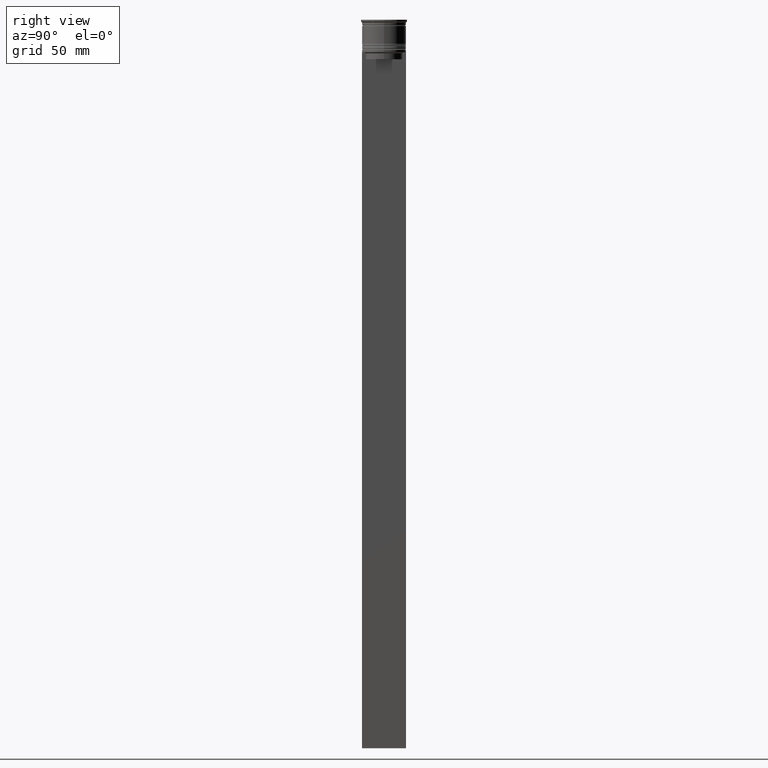
[diagram: clean part render]
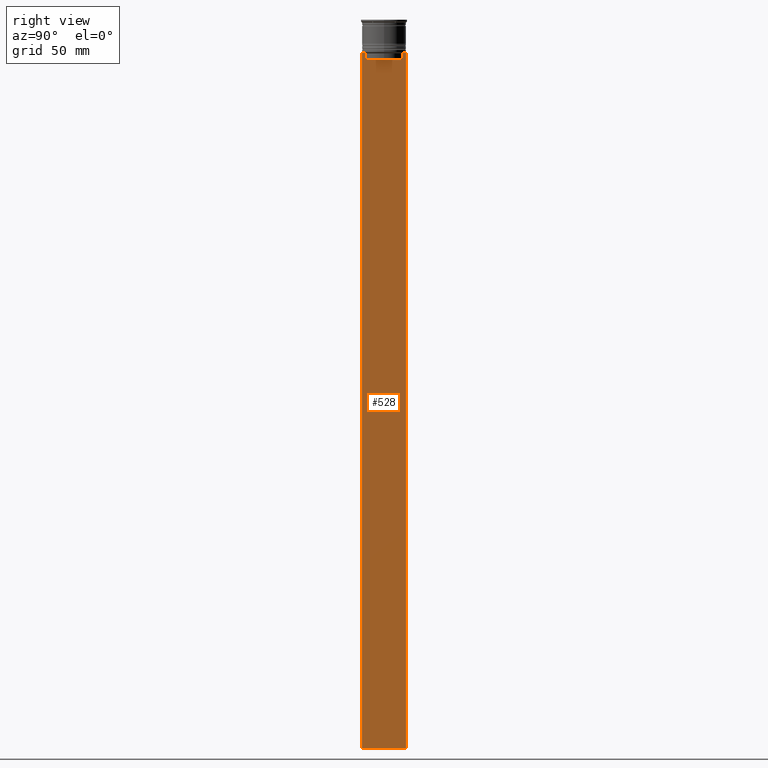
[diagram: same view with one face highlighted and labeled with its STEP entity id]
A machine part, right view. The second image highlights one B-rep face of the part: STEP entity #528.
In plain terms, the highlighted planar face has unit normal (-1, 0, 0).
Its self-contained STEP definition (entity closure, byte-faithful):
#8 = EDGE_CURVE ( 'NONE', #804, #271, #1338, .T. ) ;
#52 = B_SPLINE_CURVE_WITH_KNOTS ( 'NONE', 3,
 ( #320, #1964, #1081, #1904 ),
 .UNSPECIFIED., .F., .F.,
 ( 4, 4 ),
 ( 0.03673372442973153046, 0.03744389749832059688 ),
 .UNSPECIFIED. ) ;
#72 = LINE ( 'NONE', #2338, #1705 ) ;
#82 = CARTESIAN_POINT ( 'NONE',  ( 0.5000000000000000000, 7.884161337770803080, -17.00000000000000000 ) ) ;
#88 = CARTESIAN_POINT ( 'NONE',  ( 0.5000000000000000000, 8.218133718559618828, -14.16667606394327983 ) ) ;
#169 = VERTEX_POINT ( 'NONE', #1041 ) ;
#239 = VECTOR ( 'NONE', #1802, 1000.000000000000000 ) ;
#242 = VECTOR ( 'NONE', #1711, 1000.000000000000000 ) ;
#271 = VERTEX_POINT ( 'NONE', #496 ) ;
#295 = VERTEX_POINT ( 'NONE', #1727 ) ;
#320 = CARTESIAN_POINT ( 'NONE',  ( 0.5000000000000000000, -7.884161337770803080, -14.50000000000000000 ) ) ;
#337 = LINE ( 'NONE', #744, #1183 ) ;
#341 = VECTOR ( 'NONE', #995, 1000.000000000000000 ) ;
#368 = EDGE_CURVE ( 'NONE', #1354, #2404, #439, .T. ) ;
#435 = EDGE_CURVE ( 'NONE', #1732, #1236, #1343, .T. ) ;
#439 = LINE ( 'NONE', #1533, #242 ) ;
#496 = CARTESIAN_POINT ( 'NONE',  ( 0.5000000000000000000, 8.385105843100605583, -14.00000000000000178 ) ) ;
#513 = VECTOR ( 'NONE', #1405, 1000.000000000000000 ) ;
#528 = ADVANCED_FACE ( 'NONE', ( #1937 ), #1734, .F. ) ;
#537 = CARTESIAN_POINT ( 'NONE',  ( 0.5000000000000000000, 7.884161337770803080, -14.50000000000000000 ) ) ;
#540 = ORIENTED_EDGE ( 'NONE', *, *, #1202, .T. ) ;
#582 = CARTESIAN_POINT ( 'NONE',  ( 0.5000000000000000000, -9.386692708297204035, -14.00000000000000178 ) ) ;
#638 = CARTESIAN_POINT ( 'NONE',  ( 0.5000000000000000000, 7.884161337770803080, 0.000000000000000000 ) ) ;
#697 = CARTESIAN_POINT ( 'NONE',  ( 0.5000000000000000000, 8.051152811434374001, -14.33334332653219079 ) ) ;
#706 = DIRECTION ( 'NONE',  ( -1.000000000000000000, 0.000000000000000000, 0.000000000000000000 ) ) ;
#744 = CARTESIAN_POINT ( 'NONE',  ( 0.5000000000000000000, -9.500000000000001776, -14.00000000000000178 ) ) ;
#804 = VERTEX_POINT ( 'NONE', #1085 ) ;
#839 = VECTOR ( 'NONE', #2517, 1000.000000000000000 ) ;
#853 = ORIENTED_EDGE ( 'NONE', *, *, #2255, .T. ) ;
#876 = CARTESIAN_POINT ( 'NONE',  ( 0.5000000000000000000, -7.884161337770803080, -17.00000000000000000 ) ) ;
#948 = ORIENTED_EDGE ( 'NONE', *, *, #952, .T. ) ;
#952 = EDGE_CURVE ( 'NONE', #2462, #2564, #2656, .T. ) ;
#955 = CARTESIAN_POINT ( 'NONE',  ( 0.5000000000000000000, -9.500000000000001776, -14.00000000000000178 ) ) ;
#970 = CARTESIAN_POINT ( 'NONE',  ( 0.5000000000000000000, 9.499999999999998224, -14.00000000000000178 ) ) ;
#995 = DIRECTION ( 'NONE',  ( 0.000000000000000000, -1.000000000000000000, 0.000000000000000000 ) ) ;
#1008 = VERTEX_POINT ( 'NONE', #582 ) ;
#1041 = CARTESIAN_POINT ( 'NONE',  ( 0.5000000000000000000, -7.884161337770803080, -14.50000000000000000 ) ) ;
#1052 = VECTOR ( 'NONE', #1785, 1000.000000000000000 ) ;
#1080 = CARTESIAN_POINT ( 'NONE',  ( 0.5000000000000000000, 7.899999999999994138, -17.00000000000000000 ) ) ;
#1081 = CARTESIAN_POINT ( 'NONE',  ( 0.5000000000000000000, -8.218133703942523738, -14.16667607853445787 ) ) ;
#1085 = CARTESIAN_POINT ( 'NONE',  ( 0.5000000000000000000, 9.386692708297204035, -14.00000000000000178 ) ) ;
#1097 = DIRECTION ( 'NONE',  ( 0.000000000000000000, -1.000000000000000000, 0.000000000000000000 ) ) ;
#1104 = CARTESIAN_POINT ( 'NONE',  ( 0.5000000000000000000, -9.500000000000001776, -314.0000000000000000 ) ) ;
#1151 = CARTESIAN_POINT ( 'NONE',  ( 0.5000000000000000000, 9.499999999999998224, -314.0000000000000000 ) ) ;
#1168 = ORIENTED_EDGE ( 'NONE', *, *, #1704, .T. ) ;
#1183 = VECTOR ( 'NONE', #1097, 1000.000000000000000 ) ;
#1192 = EDGE_CURVE ( 'NONE', #1354, #804, #72, .T. ) ;
#1199 = CARTESIAN_POINT ( 'NONE',  ( 0.5000000000000000000, -7.884161337770803080, 0.000000000000000000 ) ) ;
#1200 = LINE ( 'NONE', #2024, #341 ) ;
#1202 = EDGE_CURVE ( 'NONE', #271, #1315, #1460, .T. ) ;
#1236 = VERTEX_POINT ( 'NONE', #876 ) ;
#1255 = EDGE_CURVE ( 'NONE', #295, #1008, #337, .T. ) ;
#1302 = CARTESIAN_POINT ( 'NONE',  ( 0.5000000000000000000, 8.385105843100605583, -14.00000000000000178 ) ) ;
#1311 = LINE ( 'NONE', #1902, #1445 ) ;
#1315 = VERTEX_POINT ( 'NONE', #537 ) ;
#1338 = LINE ( 'NONE', #955, #239 ) ;
#1343 = LINE ( 'NONE', #1080, #839 ) ;
#1354 = VERTEX_POINT ( 'NONE', #970 ) ;
#1405 = DIRECTION ( 'NONE',  ( 0.000000000000000000, 0.000000000000000000, -1.000000000000000000 ) ) ;
#1417 = EDGE_CURVE ( 'NONE', #1236, #169, #2417, .T. ) ;
#1445 = VECTOR ( 'NONE', #2333, 1000.000000000000000 ) ;
#1460 = B_SPLINE_CURVE_WITH_KNOTS ( 'NONE', 3,
 ( #1302, #88, #697, #2585 ),
 .UNSPECIFIED., .F., .F.,
 ( 4, 4 ),
 ( 0.01426761478740281447, 0.01497538974438914448 ),
 .UNSPECIFIED. ) ;
#1524 = DIRECTION ( 'NONE',  ( 0.000000000000000000, 0.000000000000000000, 1.000000000000000000 ) ) ;
#1533 = CARTESIAN_POINT ( 'NONE',  ( 0.5000000000000000000, 9.499999999999998224, 5.026297590440445440 ) ) ;
#1577 = VECTOR ( 'NONE', #2034, 1000.000000000000000 ) ;
#1586 = EDGE_CURVE ( 'NONE', #1315, #1732, #2477, .T. ) ;
#1704 = EDGE_CURVE ( 'NONE', #2564, #2404, #1311, .T. ) ;
#1705 = VECTOR ( 'NONE', #2354, 1000.000000000000000 ) ;
#1711 = DIRECTION ( 'NONE',  ( 0.000000000000000000, 0.000000000000000000, -1.000000000000000000 ) ) ;
#1716 = ORIENTED_EDGE ( 'NONE', *, *, #1255, .T. ) ;
#1727 = CARTESIAN_POINT ( 'NONE',  ( 0.5000000000000000000, -8.385105843100605583, -14.00000000000000178 ) ) ;
#1732 = VERTEX_POINT ( 'NONE', #82 ) ;
#1734 = PLANE ( 'NONE',  #2359 ) ;
#1785 = DIRECTION ( 'NONE',  ( -0.000000000000000000, -0.000000000000000000, 1.000000000000000000 ) ) ;
#1802 = DIRECTION ( 'NONE',  ( 0.000000000000000000, -1.000000000000000000, 0.000000000000000000 ) ) ;
#1885 = ORIENTED_EDGE ( 'NONE', *, *, #1192, .T. ) ;
#1902 = CARTESIAN_POINT ( 'NONE',  ( 0.5000000000000000000, -9.500000000000001776, -314.0000000000000000 ) ) ;
#1904 = CARTESIAN_POINT ( 'NONE',  ( 0.5000000000000000000, -8.385105843100605583, -14.00000000000000178 ) ) ;
#1937 = FACE_OUTER_BOUND ( 'NONE', #2261, .T. ) ;
#1953 = ORIENTED_EDGE ( 'NONE', *, *, #1986, .T. ) ;
#1964 = CARTESIAN_POINT ( 'NONE',  ( 0.5000000000000000000, -8.051152795888546265, -14.33334334204685057 ) ) ;
#1986 = EDGE_CURVE ( 'NONE', #1008, #2462, #1200, .T. ) ;
#2024 = CARTESIAN_POINT ( 'NONE',  ( 0.5000000000000000000, -9.500000000000001776, -14.00000000000000178 ) ) ;
#2034 = DIRECTION ( 'NONE',  ( 0.000000000000000000, 0.000000000000000000, -1.000000000000000000 ) ) ;
#2255 = EDGE_CURVE ( 'NONE', #169, #295, #52, .T. ) ;
#2261 = EDGE_LOOP ( 'NONE', ( #2512, #540, #2489, #2552, #2449, #853, #1716, #1953, #948, #1168, #2388, #1885 ) ) ;
#2333 = DIRECTION ( 'NONE',  ( 0.000000000000000000, 1.000000000000000000, 0.000000000000000000 ) ) ;
#2338 = CARTESIAN_POINT ( 'NONE',  ( 0.5000000000000000000, -9.500000000000001776, -14.00000000000000178 ) ) ;
#2354 = DIRECTION ( 'NONE',  ( 0.000000000000000000, -1.000000000000000000, 0.000000000000000000 ) ) ;
#2359 = AXIS2_PLACEMENT_3D ( 'NONE', #2550, #706, #1524 ) ;
#2388 = ORIENTED_EDGE ( 'NONE', *, *, #368, .F. ) ;
#2404 = VERTEX_POINT ( 'NONE', #1151 ) ;
#2417 = LINE ( 'NONE', #1199, #1052 ) ;
#2449 = ORIENTED_EDGE ( 'NONE', *, *, #1417, .T. ) ;
#2462 = VERTEX_POINT ( 'NONE', #2646 ) ;
#2477 = LINE ( 'NONE', #638, #1577 ) ;
#2489 = ORIENTED_EDGE ( 'NONE', *, *, #1586, .T. ) ;
#2512 = ORIENTED_EDGE ( 'NONE', *, *, #8, .T. ) ;
#2517 = DIRECTION ( 'NONE',  ( 0.000000000000000000, -1.000000000000000000, 0.000000000000000000 ) ) ;
#2550 = CARTESIAN_POINT ( 'NONE',  ( 0.5000000000000000000, -9.500000000000001776, 5.026297590440445440 ) ) ;
#2552 = ORIENTED_EDGE ( 'NONE', *, *, #435, .T. ) ;
#2564 = VERTEX_POINT ( 'NONE', #1104 ) ;
#2585 = CARTESIAN_POINT ( 'NONE',  ( 0.5000000000000000000, 7.884161337770803080, -14.50000000000000000 ) ) ;
#2636 = CARTESIAN_POINT ( 'NONE',  ( 0.5000000000000000000, -9.500000000000001776, 5.026297590440445440 ) ) ;
#2646 = CARTESIAN_POINT ( 'NONE',  ( 0.5000000000000000000, -9.500000000000001776, -14.00000000000000178 ) ) ;
#2656 = LINE ( 'NONE', #2636, #513 ) ;